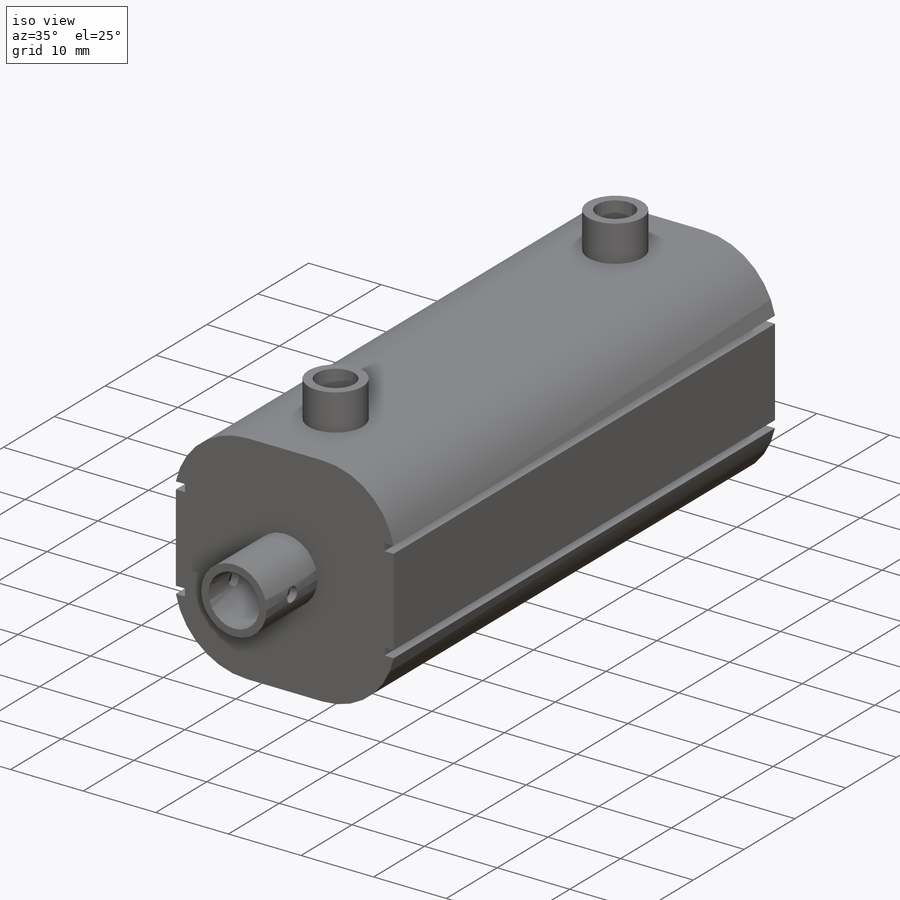
[diagram: iso view]
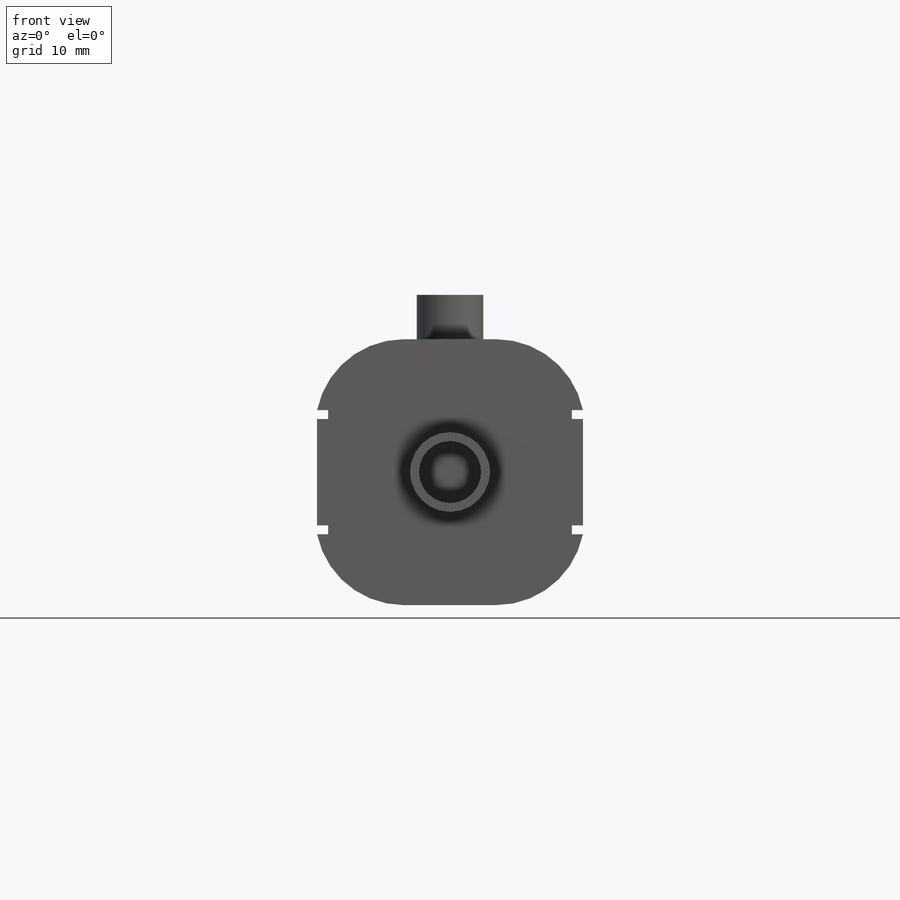
[diagram: front view]
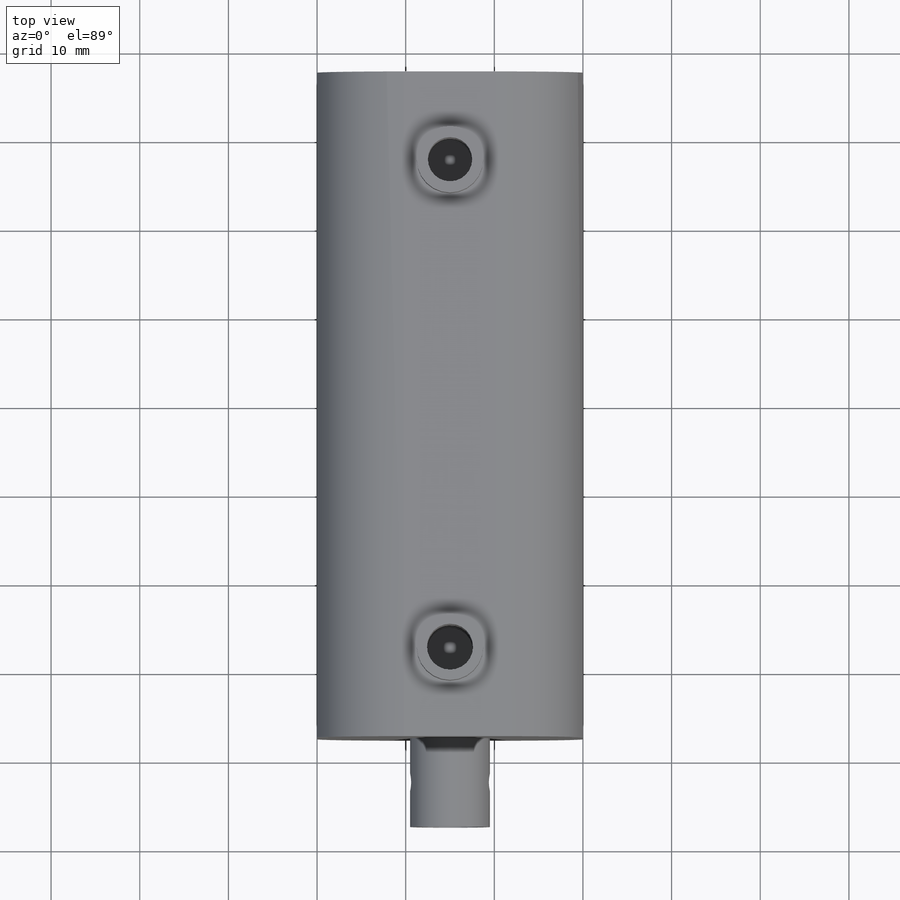
[diagram: top view]
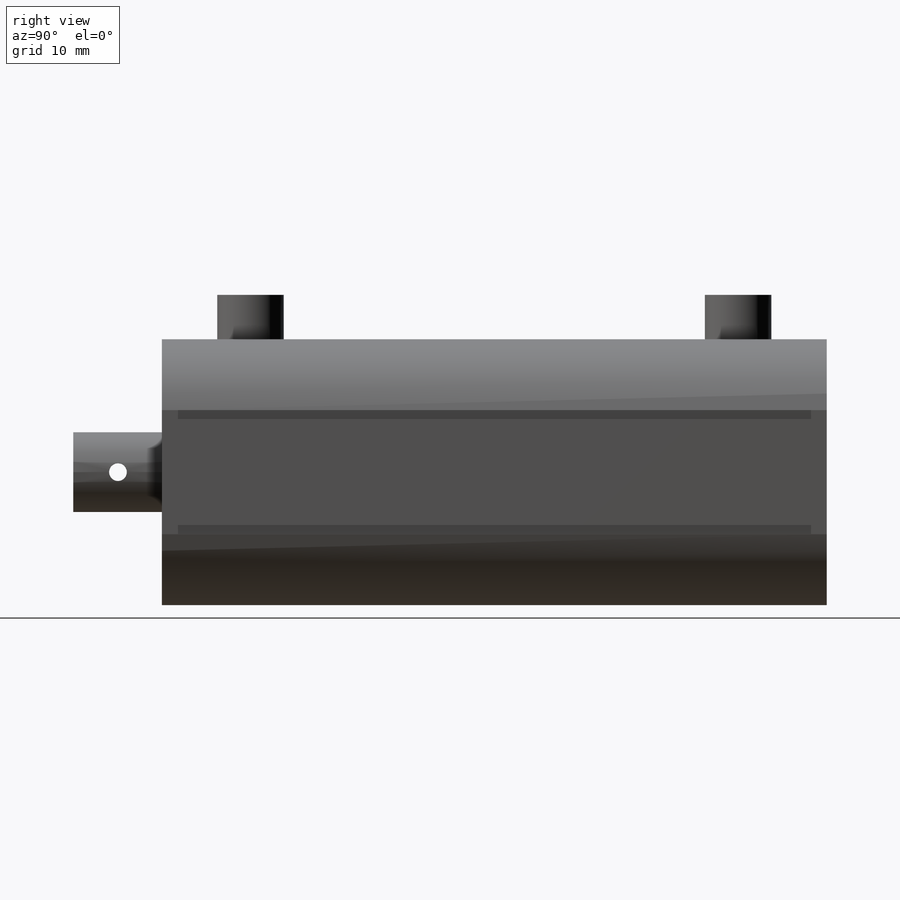
[diagram: right view]
SOLIDWORKS PART (.sldprt)
format: sldprt  version: not decoded by parser v0  size: 332,288 bytes
history: native  units: mm
features: sketch x8, cut_extrude x5, extrude x3, material x1, fillet x1 (+12 scaffold rows collapsed)
feature tree (30):
  scaffold x12  (default folders/planes/origin — collapsed)
  material  "Material <not specified>"
  sketch  "Sketch1"  dims[D1=75.0mm D2=30.0mm]
  extrude  "Boss-Extrude1"  Depth=30mm
  sketch  "Sketch3"  dims[D2=10.0mm D1=15.0mm]
  cut_extrude  "Cut-Extrude1"  Depth=60mm
  sketch  "Sketch4"  dims[D1=1.0mm D2=1.0mm D3=8.0mm D4=8.0mm]
  cut_extrude  "Cut-Extrude2"  [1 undecoded]
  sketch  "Sketch5"  dims[D1=55.0mm D2=10.0mm]
  cut_extrude  "Cut-Extrude3"  Depth=20mm
  sketch  "Sketch6"  dims[D1=7.5mm D2=7.5mm]
  extrude  "Boss-Extrude2"  Depth=5mm
  sketch  "Sketch7"  dims[D1=~1.760488mm]
  cut_extrude  "Cut-Extrude4"  Depth=10mm
  sketch  "Sketch8"  dims[c1.D1=~5.308401mm c1.D4=7.0mm c2.D1=15.0mm c2.D2=15.0mm c2.D3=1.0mm]
  extrude  "Boss-Extrude3"  Depth=10mm
  sketch  "Sketch9"  dims[D1=2.0mm]
  cut_extrude  "Cut-Extrude5"  [1 undecoded]
  fillet  "Fillet1"  Radius=10mm
decode coverage: 15 of 17 modeling features carry decoded parameters
note: ~ marks probable driven/reference dimensions
note: 2 parameter values undecoded
note: suppression state not decoded; provenance and decode notes live in map.json
